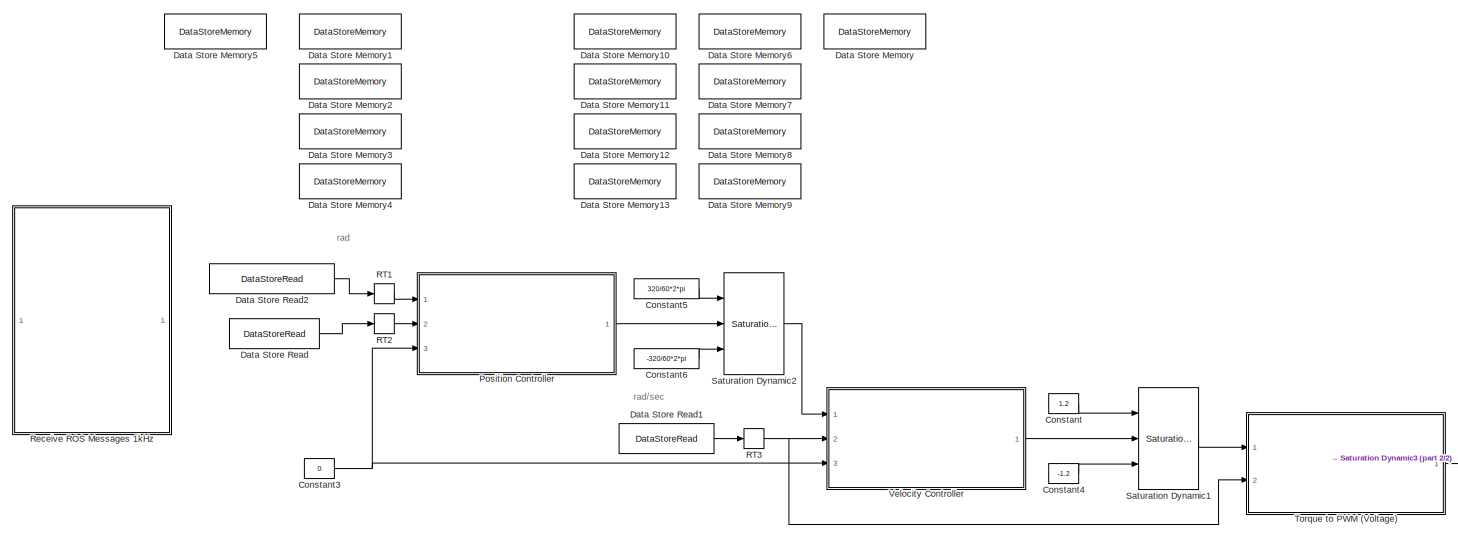
[diagram: root canvas - part 1/2, most of the canvas]
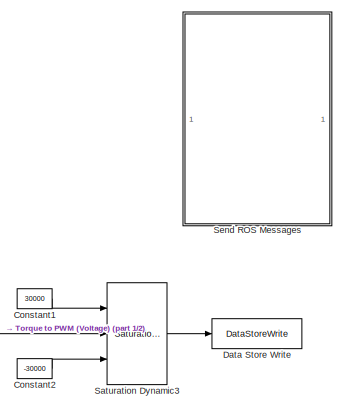
[diagram: root canvas - part 2/2, middle right region]
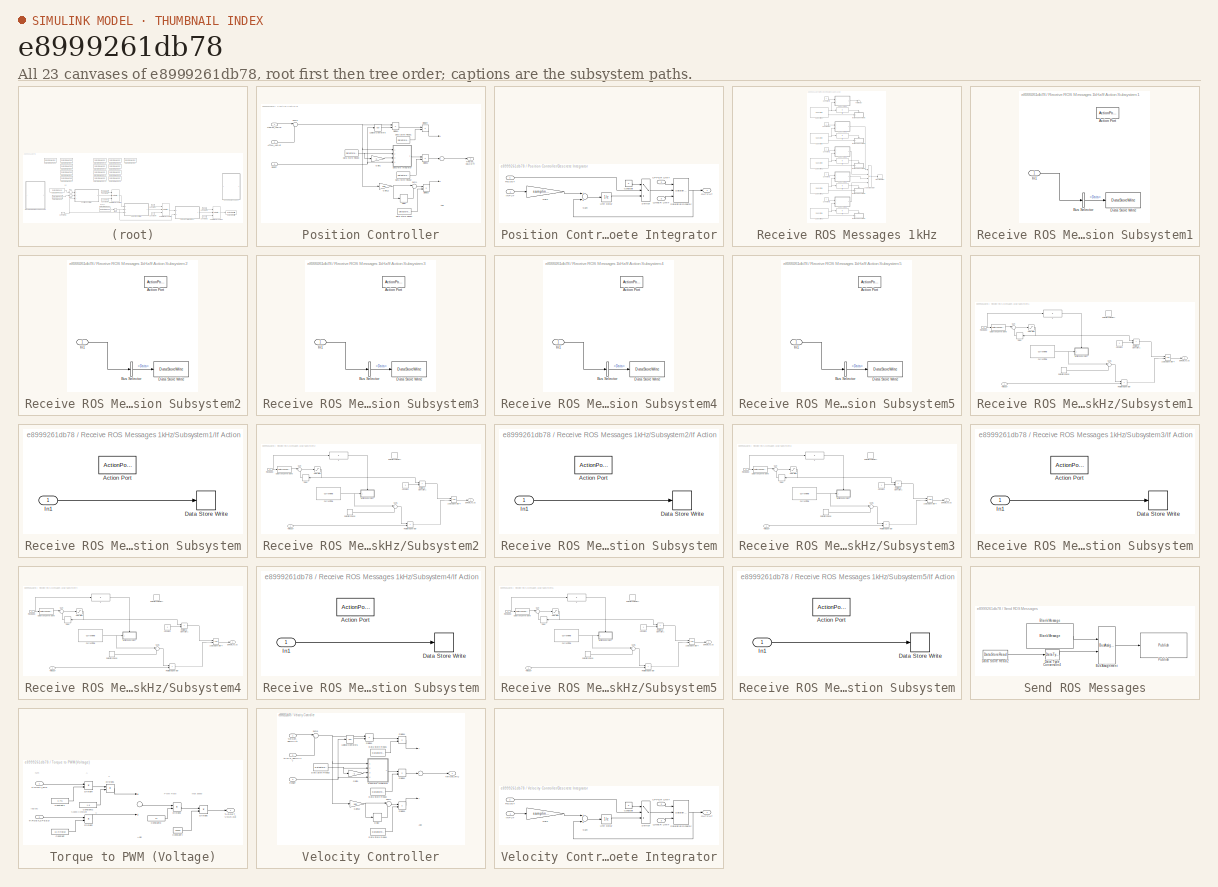
[diagram: thumbnail index - all 23 canvases of the model, root first then tree order]
MODEL slx_e8999261db78
KIND model
CONFIG AbsTol = auto
CONFIG EnableMultiTasking = on
CONFIG FixedStep = 0.001
CONFIG MaxStep = auto
CONFIG MinStep = auto
CONFIG RelTol = 1e-3
CONFIG SampleTimeConstraint = Unconstrained
CONFIG Solver = FixedStepDiscrete
CONFIG SolverName = FixedStepDiscrete
CONFIG StartTime = 0.0
CONFIG StopTime = Inf
BLOCK [Constant] Constant
  Value = 1.2
BLOCK [Constant] Constant1
  Value = 30000
BLOCK [Constant] Constant2
  Value = -30000
BLOCK [Constant] Constant3
  Value = 0
BLOCK [Constant] Constant4
  Value = -1.2
BLOCK [Constant] Constant5
  Value = 320/60*2*pi
BLOCK [Constant] Constant6
  Value = -320/60*2*pi
BLOCK [DataStoreMemory] Data Store Memory
  DataStoreName = COMMAND_VOLTAGE
  RTWStateStorageClass = ExportedGlobal
  ReadBeforeWriteMsg = warning
  ShowAdditionalParam = off
  WriteAfterReadMsg = warning
  WriteAfterWriteMsg = warning
BLOCK [DataStoreMemory] Data Store Memory1
  DataStoreName = ROTOR_ANGLE
  RTWStateStorageClass = ExportedGlobal
  ReadBeforeWriteMsg = warning
  ShowAdditionalParam = off
  WriteAfterReadMsg = warning
  WriteAfterWriteMsg = warning
BLOCK [DataStoreMemory] Data Store Memory10
  DataStoreName = ANGLE_P_GAIN
  RTWStateStorageClass = ExportedGlobal
  ReadBeforeWriteMsg = warning
  ShowAdditionalParam = off
  WriteAfterReadMsg = warning
  WriteAfterWriteMsg = warning
BLOCK [DataStoreMemory] Data Store Memory11
  DataStoreName = ANGLE_I_GAIN
  RTWStateStorageClass = ExportedGlobal
  ReadBeforeWriteMsg = warning
  ShowAdditionalParam = off
  WriteAfterReadMsg = warning
  WriteAfterWriteMsg = warning
BLOCK [DataStoreMemory] Data Store Memory12
  DataStoreName = ANGLE_D_GAIN
  RTWStateStorageClass = ExportedGlobal
  ReadBeforeWriteMsg = warning
  ShowAdditionalParam = off
  WriteAfterReadMsg = warning
  WriteAfterWriteMsg = warning
BLOCK [DataStoreMemory] Data Store Memory13
  DataStoreName = ANGLE_I_LIMIT
  RTWStateStorageClass = ExportedGlobal
  ReadBeforeWriteMsg = warning
  ShowAdditionalParam = off
  WriteAfterReadMsg = warning
  WriteAfterWriteMsg = warning
BLOCK [DataStoreMemory] Data Store Memory2
  DataStoreName = ROTATE_SPEED
  RTWStateStorageClass = ExportedGlobal
  ReadBeforeWriteMsg = warning
  ShowAdditionalParam = off
  WriteAfterReadMsg = warning
  WriteAfterWriteMsg = warning
BLOCK [DataStoreMemory] Data Store Memory3
  DataStoreName = ACTUAL_TORQUE
  RTWStateStorageClass = ExportedGlobal
  ReadBeforeWriteMsg = warning
  ShowAdditionalParam = off
  WriteAfterReadMsg = warning
  WriteAfterWriteMsg = warning
BLOCK [DataStoreMemory] Data Store Memory4
  DataStoreName = TEMPERATURE
  RTWStateStorageClass = ExportedGlobal
  ReadBeforeWriteMsg = warning
  ShowAdditionalParam = off
  WriteAfterReadMsg = warning
  WriteAfterWriteMsg = warning
BLOCK [DataStoreMemory] Data Store Memory5
  DataStoreName = COMMAND_ROTOR_ANGLE
  RTWStateStorageClass = ExportedGlobal
  ReadBeforeWriteMsg = warning
  ShowAdditionalParam = off
  WriteAfterReadMsg = warning
  WriteAfterWriteMsg = warning
BLOCK [DataStoreMemory] Data Store Memory6
  DataStoreName = VELOCITY_P_GAIN
  RTWStateStorageClass = ExportedGlobal
  ReadBeforeWriteMsg = warning
  ShowAdditionalParam = off
  WriteAfterReadMsg = warning
  WriteAfterWriteMsg = warning
BLOCK [DataStoreMemory] Data Store Memory7
  DataStoreName = VELOCITY_I_GAIN
  RTWStateStorageClass = ExportedGlobal
  ReadBeforeWriteMsg = warning
  ShowAdditionalParam = off
  WriteAfterReadMsg = warning
  WriteAfterWriteMsg = warning
BLOCK [DataStoreMemory] Data Store Memory8
  DataStoreName = VELOCITY_D_GAIN
  RTWStateStorageClass = ExportedGlobal
  ReadBeforeWriteMsg = warning
  ShowAdditionalParam = off
  WriteAfterReadMsg = warning
  WriteAfterWriteMsg = warning
BLOCK [DataStoreMemory] Data Store Memory9
  DataStoreName = VELOCITY_I_LIMIT
  RTWStateStorageClass = ExportedGlobal
  ReadBeforeWriteMsg = warning
  ShowAdditionalParam = off
  WriteAfterReadMsg = warning
  WriteAfterWriteMsg = warning
BLOCK [DataStoreRead] Data Store Read
  DataStoreName = ROTOR_ANGLE
  Ports = [0, 1]
BLOCK [DataStoreRead] Data Store Read1
  DataStoreName = ROTATE_SPEED
  Ports = [0, 1]
BLOCK [DataStoreRead] Data Store Read2
  DataStoreName = COMMAND_ROTOR_ANGLE
  Ports = [0, 1]
BLOCK [DataStoreWrite] Data Store Write
  DataStoreName = COMMAND_VOLTAGE
  Ports = [1]
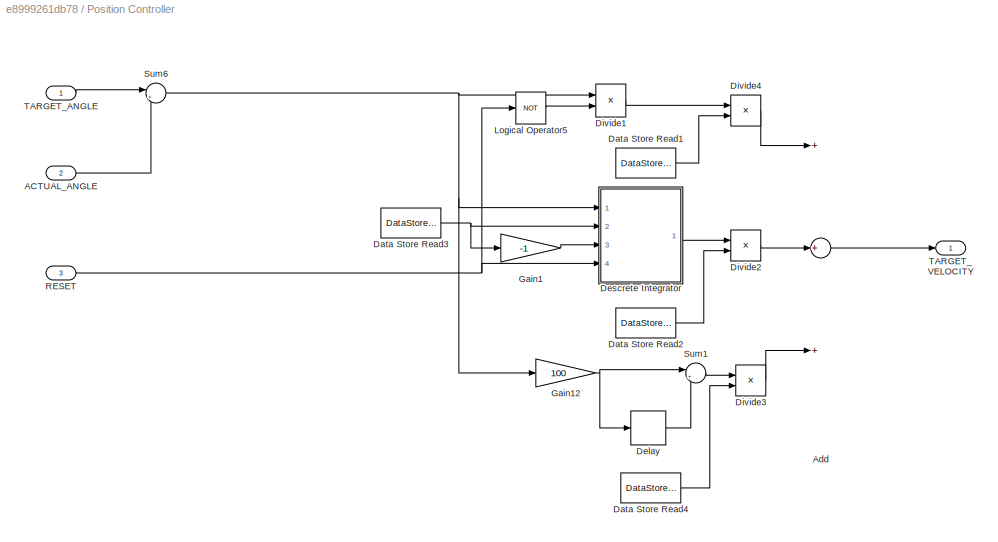
BLOCK [SubSystem] Position Controller
  Ports = [3, 1]
  RequestExecContextInheritance = off
  SystemSampleTime = 0.01
  TreatAsAtomicUnit = on
BLOCK [Inport] Position Controller/ACTUAL_ANGLE
  IconDisplay = Port number
  Port = 2
BLOCK [Sum] Position Controller/Add
  InputSameDT = off
  Inputs = +++
  OutDataTypeStr = Inherit: Inherit via internal rule
  Ports = [3, 1]
  SaturateOnIntegerOverflow = off
BLOCK [DataStoreRead] Position Controller/Data Store Read1
  DataStoreName = ANGLE_P_GAIN
  Ports = [0, 1]
BLOCK [DataStoreRead] Position Controller/Data Store Read2
  DataStoreName = ANGLE_I_GAIN
  Ports = [0, 1]
BLOCK [DataStoreRead] Position Controller/Data Store Read3
  DataStoreName = ANGLE_I_LIMIT
  Ports = [0, 1]
BLOCK [DataStoreRead] Position Controller/Data Store Read4
  DataStoreName = ANGLE_D_GAIN
  Ports = [0, 1]
BLOCK [Delay] Position Controller/Delay
  DelayLength = 1
  InputPortMap = u0
  Ports = [1, 1]
BLOCK [SubSystem] Position Controller/Descrete Integrator
  CopyFcn = set_param(gcbh,'LinkStatus','none')
  Ports = [4, 1]
  RequestExecContextInheritance = off
BLOCK [Constant] Position Controller/Descrete Integrator/Constant
  Value = 0
BLOCK [Gain] Position Controller/Descrete Integrator/Gain
  Gain = sampling_time
  OutDataTypeStr = Inherit: Inherit via internal rule
  ParamDataTypeStr = Inherit: Inherit via internal rule
  SaturateOnIntegerOverflow = off
BLOCK [Inport] Position Controller/Descrete Integrator/INPUT
  IconDisplay = Port number
BLOCK [Inport] Position Controller/Descrete Integrator/LOWER LIMIT
  IconDisplay = Port number
  Port = 3
BLOCK [Outport] Position Controller/Descrete Integrator/OUTPUT
  IconDisplay = Port number
BLOCK [Inport] Position Controller/Descrete Integrator/RESET
  IconDisplay = Port number
  Port = 4
BLOCK [Reference] Position Controller/Descrete Integrator/Saturation Dynamic  REF=simulink/Discontinuities/Saturation
Dynamic
  Ports = [3, 1]
  SourceBlock = simulink/Discontinuities/Saturation\nDynamic
  SourceProductBaseCode = SL
  SourceProductName = Simulink
  SourceType = Saturation Dynamic
BLOCK [Sum] Position Controller/Descrete Integrator/Sum
  InputSameDT = off
  OutDataTypeStr = Inherit: Inherit via internal rule
  Ports = [2, 1]
  SaturateOnIntegerOverflow = off
BLOCK [Switch] Position Controller/Descrete Integrator/Switch
  Criteria = u2 ~= 0
  InputSameDT = off
  SaturateOnIntegerOverflow = off
BLOCK [Inport] Position Controller/Descrete Integrator/UPPER LIMIT
  IconDisplay = Port number
  Port = 2
BLOCK [UnitDelay] Position Controller/Descrete Integrator/Unit Delay
  HasFrameUpgradeWarning = on
  SampleTime = -1
BLOCK [Product] Position Controller/Divide1
  InputSameDT = off
  Inputs = **
  OutDataTypeStr = Inherit: Inherit via internal rule
  Ports = [2, 1]
  RndMeth = Floor
  SaturateOnIntegerOverflow = off
BLOCK [Product] Position Controller/Divide2
  InputSameDT = off
  Inputs = **
  OutDataTypeStr = Inherit: Inherit via internal rule
  Ports = [2, 1]
  RndMeth = Floor
  SaturateOnIntegerOverflow = off
BLOCK [Product] Position Controller/Divide3
  InputSameDT = off
  Inputs = **
  OutDataTypeStr = Inherit: Inherit via internal rule
  Ports = [2, 1]
  RndMeth = Floor
  SaturateOnIntegerOverflow = off
BLOCK [Product] Position Controller/Divide4
  InputSameDT = off
  Inputs = **
  OutDataTypeStr = Inherit: Inherit via internal rule
  Ports = [2, 1]
  RndMeth = Floor
  SaturateOnIntegerOverflow = off
BLOCK [Gain] Position Controller/Gain1
  Gain = -1
  OutDataTypeStr = Inherit: Inherit via internal rule
  ParamDataTypeStr = Inherit: Inherit via internal rule
  SaturateOnIntegerOverflow = off
BLOCK [Gain] Position Controller/Gain12
  Gain = 100
  OutDataTypeStr = Inherit: Inherit via internal rule
  ParamDataTypeStr = Inherit: Inherit via internal rule
  SaturateOnIntegerOverflow = off
BLOCK [Logic] Position Controller/Logical Operator5
  AllPortsSameDT = off
  Operator = NOT
  OutDataTypeStr = boolean
  Ports = [1, 1]
BLOCK [Inport] Position Controller/RESET
  IconDisplay = Port number
  Port = 3
BLOCK [Sum] Position Controller/Sum1
  IconShape = round
  InputSameDT = off
  Inputs = |+-
  OutDataTypeStr = Inherit: Inherit via internal rule
  Ports = [2, 1]
  SaturateOnIntegerOverflow = off
BLOCK [Sum] Position Controller/Sum6
  IconShape = round
  InputSameDT = off
  Inputs = |+-
  OutDataTypeStr = Inherit: Inherit via internal rule
  Ports = [2, 1]
  SaturateOnIntegerOverflow = off
BLOCK [Inport] Position Controller/TARGET_ANGLE
  IconDisplay = Port number
BLOCK [Outport] Position Controller/TARGET_VELOCITY
  IconDisplay = Port number
BLOCK [RateTransition] RT1
  Deterministic = off
  OutPortSampleTime = 0.01
BLOCK [RateTransition] RT2
  Deterministic = off
  OutPortSampleTime = 0.01
BLOCK [RateTransition] RT3
  Deterministic = off
  OutPortSampleTime = 0.01
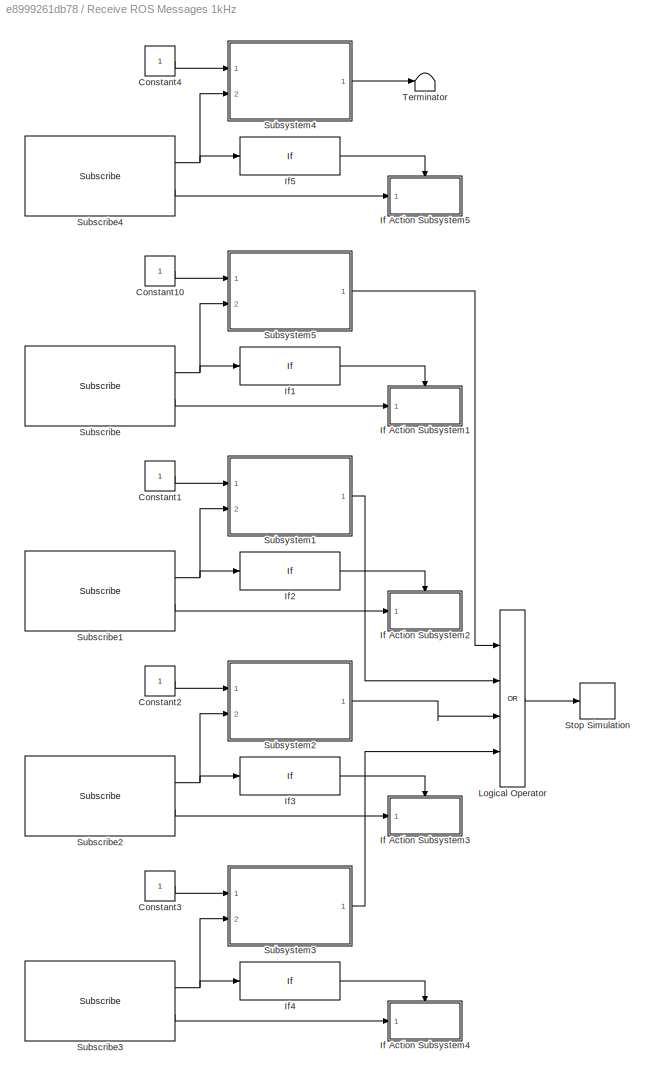
BLOCK [SubSystem] Receive ROS Messages 1kHz
  Ports = []
  RequestExecContextInheritance = off
  SystemSampleTime = 0.001
  TreatAsAtomicUnit = on
BLOCK [Constant] Receive ROS Messages 1kHz/Constant1
BLOCK [Constant] Receive ROS Messages 1kHz/Constant10
BLOCK [Constant] Receive ROS Messages 1kHz/Constant2
BLOCK [Constant] Receive ROS Messages 1kHz/Constant3
BLOCK [Constant] Receive ROS Messages 1kHz/Constant4
BLOCK [SubSystem] Receive ROS Messages 1kHz/If Action Subsystem1
  Ports = [1, 0, 0, 0, 0, 0, 0, 1]
  RequestExecContextInheritance = off
  TreatAsAtomicUnit = on
BLOCK [ActionPort] Receive ROS Messages 1kHz/If Action Subsystem1/Action Port
  ActionPortLabel = if(u1 == 1)
BLOCK [BusSelector] Receive ROS Messages 1kHz/If Action Subsystem1/Bus Selector
  OutputAsBus = off
  OutputSignals = Data
  Ports = [1, 1]
BLOCK [DataStoreWrite] Receive ROS Messages 1kHz/If Action Subsystem1/Data Store Write
  DataStoreName = ROTOR_ANGLE
  Ports = [1]
BLOCK [Inport] Receive ROS Messages 1kHz/If Action Subsystem1/In1
  IconDisplay = Port number
BLOCK [SubSystem] Receive ROS Messages 1kHz/If Action Subsystem2
  Ports = [1, 0, 0, 0, 0, 0, 0, 1]
  RequestExecContextInheritance = off
  TreatAsAtomicUnit = on
BLOCK [ActionPort] Receive ROS Messages 1kHz/If Action Subsystem2/Action Port
  ActionPortLabel = if(u1 == 1)
BLOCK [BusSelector] Receive ROS Messages 1kHz/If Action Subsystem2/Bus Selector
  OutputAsBus = off
  OutputSignals = Data
  Ports = [1, 1]
BLOCK [DataStoreWrite] Receive ROS Messages 1kHz/If Action Subsystem2/Data Store Write
  DataStoreName = ROTATE_SPEED
  Ports = [1]
BLOCK [Inport] Receive ROS Messages 1kHz/If Action Subsystem2/In1
  IconDisplay = Port number
BLOCK [SubSystem] Receive ROS Messages 1kHz/If Action Subsystem3
  Ports = [1, 0, 0, 0, 0, 0, 0, 1]
  RequestExecContextInheritance = off
  TreatAsAtomicUnit = on
BLOCK [ActionPort] Receive ROS Messages 1kHz/If Action Subsystem3/Action Port
  ActionPortLabel = if(u1 == 1)
BLOCK [BusSelector] Receive ROS Messages 1kHz/If Action Subsystem3/Bus Selector
  OutputAsBus = off
  OutputSignals = Data
  Ports = [1, 1]
BLOCK [DataStoreWrite] Receive ROS Messages 1kHz/If Action Subsystem3/Data Store Write
  DataStoreName = ACTUAL_TORQUE
  Ports = [1]
BLOCK [Inport] Receive ROS Messages 1kHz/If Action Subsystem3/In1
  IconDisplay = Port number
BLOCK [SubSystem] Receive ROS Messages 1kHz/If Action Subsystem4
  Ports = [1, 0, 0, 0, 0, 0, 0, 1]
  RequestExecContextInheritance = off
  TreatAsAtomicUnit = on
BLOCK [ActionPort] Receive ROS Messages 1kHz/If Action Subsystem4/Action Port
  ActionPortLabel = if(u1 == 1)
BLOCK [BusSelector] Receive ROS Messages 1kHz/If Action Subsystem4/Bus Selector
  OutputAsBus = off
  OutputSignals = Data
  Ports = [1, 1]
BLOCK [DataStoreWrite] Receive ROS Messages 1kHz/If Action Subsystem4/Data Store Write
  DataStoreName = TEMPERATURE
  Ports = [1]
BLOCK [Inport] Receive ROS Messages 1kHz/If Action Subsystem4/In1
  IconDisplay = Port number
BLOCK [SubSystem] Receive ROS Messages 1kHz/If Action Subsystem5
  Ports = [1, 0, 0, 0, 0, 0, 0, 1]
  RequestExecContextInheritance = off
  TreatAsAtomicUnit = on
BLOCK [ActionPort] Receive ROS Messages 1kHz/If Action Subsystem5/Action Port
  ActionPortLabel = if(u1 == 1)
BLOCK [BusSelector] Receive ROS Messages 1kHz/If Action Subsystem5/Bus Selector
  OutputAsBus = off
  OutputSignals = Data
  Ports = [1, 1]
BLOCK [DataStoreWrite] Receive ROS Messages 1kHz/If Action Subsystem5/Data Store Write
  DataStoreName = COMMAND_ROTOR_ANGLE
  Ports = [1]
BLOCK [Inport] Receive ROS Messages 1kHz/If Action Subsystem5/In1
  IconDisplay = Port number
BLOCK [If] Receive ROS Messages 1kHz/If1
  IfExpression = u1 == 1
  Ports = [1, 1]
  ShowElse = off
BLOCK [If] Receive ROS Messages 1kHz/If2
  IfExpression = u1 == 1
  Ports = [1, 1]
  ShowElse = off
BLOCK [If] Receive ROS Messages 1kHz/If3
  IfExpression = u1 == 1
  Ports = [1, 1]
  ShowElse = off
BLOCK [If] Receive ROS Messages 1kHz/If4
  IfExpression = u1 == 1
  Ports = [1, 1]
  ShowElse = off
BLOCK [If] Receive ROS Messages 1kHz/If5
  IfExpression = u1 == 1
  Ports = [1, 1]
  ShowElse = off
BLOCK [Logic] Receive ROS Messages 1kHz/Logical Operator
  AllPortsSameDT = off
  Inputs = 4
  Operator = OR
  OutDataTypeStr = boolean
  Ports = [4, 1]
BLOCK [Stop] Receive ROS Messages 1kHz/Stop Simulation
BLOCK [Reference] Receive ROS Messages 1kHz/Subscribe  REF=robotlib/Subscribe
  Ports = [0, 2]
  SourceBlock = robotlib/Subscribe
  SourceProductBaseCode = RR
  SourceProductName = ROS Toolbox
  SourceType = ROS Subscribe
BLOCK [Reference] Receive ROS Messages 1kHz/Subscribe1  REF=robotlib/Subscribe
  Ports = [0, 2]
  SourceBlock = robotlib/Subscribe
  SourceProductBaseCode = RR
  SourceProductName = ROS Toolbox
  SourceType = ROS Subscribe
BLOCK [Reference] Receive ROS Messages 1kHz/Subscribe2  REF=robotlib/Subscribe
  Ports = [0, 2]
  SourceBlock = robotlib/Subscribe
  SourceProductBaseCode = RR
  SourceProductName = ROS Toolbox
  SourceType = ROS Subscribe
BLOCK [Reference] Receive ROS Messages 1kHz/Subscribe3  REF=robotlib/Subscribe
  Ports = [0, 2]
  SourceBlock = robotlib/Subscribe
  SourceProductBaseCode = RR
  SourceProductName = ROS Toolbox
  SourceType = ROS Subscribe
BLOCK [Reference] Receive ROS Messages 1kHz/Subscribe4  REF=robotlib/Subscribe
  Ports = [0, 2]
  SourceBlock = robotlib/Subscribe
  SourceProductBaseCode = RR
  SourceProductName = ROS Toolbox
  SourceType = ROS Subscribe
BLOCK [SubSystem] Receive ROS Messages 1kHz/Subsystem1
  Ports = [2, 1]
  RequestExecContextInheritance = off
BLOCK [Constant] Receive ROS Messages 1kHz/Subsystem1/Constant
BLOCK [Reference] Receive ROS Messages 1kHz/Subsystem1/Current Time  REF=robotlib/Current Time
  Ports = [0, 1]
  SourceBlock = robotlib/Current Time
  SourceProductBaseCode = RO
  SourceProductName = Robotics System Toolbox
  SourceType = robotics.slros.internal.block.CurrentTime
BLOCK [DataStoreMemory] Receive ROS Messages 1kHz/Subsystem1/Data Store Memory
  DataStoreName = ROS_RECEIVED_TIME
  InitialValue = 10
  ReadBeforeWriteMsg = warning
  ShowAdditionalParam = off
  WriteAfterReadMsg = warning
  WriteAfterWriteMsg = warning
BLOCK [DataStoreRead] Receive ROS Messages 1kHz/Subsystem1/Data Store Read
  DataStoreName = ROS_RECEIVED_TIME
  Ports = [0, 1]
BLOCK [DataTypeConversion] Receive ROS Messages 1kHz/Subsystem1/Data Type Conversion6
  OutDataTypeStr = uint8
  RndMeth = Floor
  SaturateOnIntegerOverflow = off
BLOCK [Delay] Receive ROS Messages 1kHz/Subsystem1/Delay
  DelayLength = 1
  InputPortMap = u0
  Ports = [1, 1]
BLOCK [Outport] Receive ROS Messages 1kHz/Subsystem1/ERROR_FLAG
  IconDisplay = Port number
BLOCK [If] Receive ROS Messages 1kHz/Subsystem1/If
  IfExpression = u1 == 1
  Ports = [1, 1]
  ShowElse = off
BLOCK [SubSystem] Receive ROS Messages 1kHz/Subsystem1/If Action Subsystem
  Ports = [1, 0, 0, 0, 0, 0, 0, 1]
  RequestExecContextInheritance = off
  TreatAsAtomicUnit = on
BLOCK [ActionPort] Receive ROS Messages 1kHz/Subsystem1/If Action Subsystem/Action Port
  ActionPortLabel = if(u1 == 1)
BLOCK [DataStoreWrite] Receive ROS Messages 1kHz/Subsystem1/If Action Subsystem/Data Store Write
  DataStoreName = ROS_RECEIVED_TIME
  Ports = [1]
BLOCK [Inport] Receive ROS Messages 1kHz/Subsystem1/If Action Subsystem/In1
  IconDisplay = Port number
BLOCK [Logic] Receive ROS Messages 1kHz/Subsystem1/Logical Operator4
  AllPortsSameDT = off
  OutDataTypeStr = boolean
  Ports = [2, 1]
BLOCK [Inport] Receive ROS Messages 1kHz/Subsystem1/RECEIVED
  IconDisplay = Port number
  Port = 2
BLOCK [RelationalOperator] Receive ROS Messages 1kHz/Subsystem1/Relational Operator
  InputSameDT = off
  Operator = >
  OutDataTypeStr = boolean
  Ports = [2, 1]
  RndMeth = Simplest
BLOCK [RelationalOperator] Receive ROS Messages 1kHz/Subsystem1/Relational Operator1
  InputSameDT = off
  Operator = >
  OutDataTypeStr = boolean
  Ports = [2, 1]
  RndMeth = Simplest
BLOCK [Saturate] Receive ROS Messages 1kHz/Subsystem1/Saturation
  InputPortMap = u0
  LowerLimit = 0
  Ports = [1, 1]
  UpperLimit = 2
BLOCK [Sum] Receive ROS Messages 1kHz/Subsystem1/Sum
  IconShape = round
  InputSameDT = off
  Inputs = |++
  OutDataTypeStr = Inherit: Inherit via internal rule
  Ports = [2, 1]
  SaturateOnIntegerOverflow = off
BLOCK [Sum] Receive ROS Messages 1kHz/Subsystem1/Sum1
  IconShape = round
  InputSameDT = off
  Inputs = |+-
  OutDataTypeStr = Inherit: Inherit via internal rule
  Ports = [2, 1]
  SaturateOnIntegerOverflow = off
BLOCK [Inport] Receive ROS Messages 1kHz/Subsystem1/TIMEOUT
  IconDisplay = Port number
BLOCK [SubSystem] Receive ROS Messages 1kHz/Subsystem2
  Ports = [2, 1]
  RequestExecContextInheritance = off
BLOCK [Constant] Receive ROS Messages 1kHz/Subsystem2/Constant
BLOCK [Reference] Receive ROS Messages 1kHz/Subsystem2/Current Time  REF=robotlib/Current Time
  Ports = [0, 1]
  SourceBlock = robotlib/Current Time
  SourceProductBaseCode = RO
  SourceProductName = Robotics System Toolbox
  SourceType = robotics.slros.internal.block.CurrentTime
BLOCK [DataStoreMemory] Receive ROS Messages 1kHz/Subsystem2/Data Store Memory
  DataStoreName = ROS_RECEIVED_TIME
  InitialValue = 10
  ReadBeforeWriteMsg = warning
  ShowAdditionalParam = off
  WriteAfterReadMsg = warning
  WriteAfterWriteMsg = warning
BLOCK [DataStoreRead] Receive ROS Messages 1kHz/Subsystem2/Data Store Read
  DataStoreName = ROS_RECEIVED_TIME
  Ports = [0, 1]
BLOCK [DataTypeConversion] Receive ROS Messages 1kHz/Subsystem2/Data Type Conversion6
  OutDataTypeStr = uint8
  RndMeth = Floor
  SaturateOnIntegerOverflow = off
BLOCK [Delay] Receive ROS Messages 1kHz/Subsystem2/Delay
  DelayLength = 1
  InputPortMap = u0
  Ports = [1, 1]
BLOCK [Outport] Receive ROS Messages 1kHz/Subsystem2/ERROR_FLAG
  IconDisplay = Port number
BLOCK [If] Receive ROS Messages 1kHz/Subsystem2/If
  IfExpression = u1 == 1
  Ports = [1, 1]
  ShowElse = off
BLOCK [SubSystem] Receive ROS Messages 1kHz/Subsystem2/If Action Subsystem
  Ports = [1, 0, 0, 0, 0, 0, 0, 1]
  RequestExecContextInheritance = off
  TreatAsAtomicUnit = on
BLOCK [ActionPort] Receive ROS Messages 1kHz/Subsystem2/If Action Subsystem/Action Port
  ActionPortLabel = if(u1 == 1)
BLOCK [DataStoreWrite] Receive ROS Messages 1kHz/Subsystem2/If Action Subsystem/Data Store Write
  DataStoreName = ROS_RECEIVED_TIME
  Ports = [1]
BLOCK [Inport] Receive ROS Messages 1kHz/Subsystem2/If Action Subsystem/In1
  IconDisplay = Port number
BLOCK [Logic] Receive ROS Messages 1kHz/Subsystem2/Logical Operator4
  AllPortsSameDT = off
  OutDataTypeStr = boolean
  Ports = [2, 1]
BLOCK [Inport] Receive ROS Messages 1kHz/Subsystem2/RECEIVED
  IconDisplay = Port number
  Port = 2
BLOCK [RelationalOperator] Receive ROS Messages 1kHz/Subsystem2/Relational Operator
  InputSameDT = off
  Operator = >
  OutDataTypeStr = boolean
  Ports = [2, 1]
  RndMeth = Simplest
BLOCK [RelationalOperator] Receive ROS Messages 1kHz/Subsystem2/Relational Operator1
  InputSameDT = off
  Operator = >
  OutDataTypeStr = boolean
  Ports = [2, 1]
  RndMeth = Simplest
BLOCK [Saturate] Receive ROS Messages 1kHz/Subsystem2/Saturation
  InputPortMap = u0
  LowerLimit = 0
  Ports = [1, 1]
  UpperLimit = 2
BLOCK [Sum] Receive ROS Messages 1kHz/Subsystem2/Sum
  IconShape = round
  InputSameDT = off
  Inputs = |++
  OutDataTypeStr = Inherit: Inherit via internal rule
  Ports = [2, 1]
  SaturateOnIntegerOverflow = off
BLOCK [Sum] Receive ROS Messages 1kHz/Subsystem2/Sum1
  IconShape = round
  InputSameDT = off
  Inputs = |+-
  OutDataTypeStr = Inherit: Inherit via internal rule
  Ports = [2, 1]
  SaturateOnIntegerOverflow = off
BLOCK [Inport] Receive ROS Messages 1kHz/Subsystem2/TIMEOUT
  IconDisplay = Port number
BLOCK [SubSystem] Receive ROS Messages 1kHz/Subsystem3
  Ports = [2, 1]
  RequestExecContextInheritance = off
BLOCK [Constant] Receive ROS Messages 1kHz/Subsystem3/Constant
BLOCK [Reference] Receive ROS Messages 1kHz/Subsystem3/Current Time  REF=robotlib/Current Time
  Ports = [0, 1]
  SourceBlock = robotlib/Current Time
  SourceProductBaseCode = RO
  SourceProductName = Robotics System Toolbox
  SourceType = robotics.slros.internal.block.CurrentTime
BLOCK [DataStoreMemory] Receive ROS Messages 1kHz/Subsystem3/Data Store Memory
  DataStoreName = ROS_RECEIVED_TIME
  InitialValue = 10
  ReadBeforeWriteMsg = warning
  ShowAdditionalParam = off
  WriteAfterReadMsg = warning
  WriteAfterWriteMsg = warning
BLOCK [DataStoreRead] Receive ROS Messages 1kHz/Subsystem3/Data Store Read
  DataStoreName = ROS_RECEIVED_TIME
  Ports = [0, 1]
BLOCK [DataTypeConversion] Receive ROS Messages 1kHz/Subsystem3/Data Type Conversion6
  OutDataTypeStr = uint8
  RndMeth = Floor
  SaturateOnIntegerOverflow = off
BLOCK [Delay] Receive ROS Messages 1kHz/Subsystem3/Delay
  DelayLength = 1
  InputPortMap = u0
  Ports = [1, 1]
BLOCK [Outport] Receive ROS Messages 1kHz/Subsystem3/ERROR_FLAG
  IconDisplay = Port number
BLOCK [If] Receive ROS Messages 1kHz/Subsystem3/If
  IfExpression = u1 == 1
  Ports = [1, 1]
  ShowElse = off
BLOCK [SubSystem] Receive ROS Messages 1kHz/Subsystem3/If Action Subsystem
  Ports = [1, 0, 0, 0, 0, 0, 0, 1]
  RequestExecContextInheritance = off
  TreatAsAtomicUnit = on
BLOCK [ActionPort] Receive ROS Messages 1kHz/Subsystem3/If Action Subsystem/Action Port
  ActionPortLabel = if(u1 == 1)
BLOCK [DataStoreWrite] Receive ROS Messages 1kHz/Subsystem3/If Action Subsystem/Data Store Write
  DataStoreName = ROS_RECEIVED_TIME
  Ports = [1]
BLOCK [Inport] Receive ROS Messages 1kHz/Subsystem3/If Action Subsystem/In1
  IconDisplay = Port number
BLOCK [Logic] Receive ROS Messages 1kHz/Subsystem3/Logical Operator4
  AllPortsSameDT = off
  OutDataTypeStr = boolean
  Ports = [2, 1]
BLOCK [Inport] Receive ROS Messages 1kHz/Subsystem3/RECEIVED
  IconDisplay = Port number
  Port = 2
BLOCK [RelationalOperator] Receive ROS Messages 1kHz/Subsystem3/Relational Operator
  InputSameDT = off
  Operator = >
  OutDataTypeStr = boolean
  Ports = [2, 1]
  RndMeth = Simplest
BLOCK [RelationalOperator] Receive ROS Messages 1kHz/Subsystem3/Relational Operator1
  InputSameDT = off
  Operator = >
  OutDataTypeStr = boolean
  Ports = [2, 1]
  RndMeth = Simplest
BLOCK [Saturate] Receive ROS Messages 1kHz/Subsystem3/Saturation
  InputPortMap = u0
  LowerLimit = 0
  Ports = [1, 1]
  UpperLimit = 2
BLOCK [Sum] Receive ROS Messages 1kHz/Subsystem3/Sum
  IconShape = round
  InputSameDT = off
  Inputs = |++
  OutDataTypeStr = Inherit: Inherit via internal rule
  Ports = [2, 1]
  SaturateOnIntegerOverflow = off
BLOCK [Sum] Receive ROS Messages 1kHz/Subsystem3/Sum1
  IconShape = round
  InputSameDT = off
  Inputs = |+-
  OutDataTypeStr = Inherit: Inherit via internal rule
  Ports = [2, 1]
  SaturateOnIntegerOverflow = off
BLOCK [Inport] Receive ROS Messages 1kHz/Subsystem3/TIMEOUT
  IconDisplay = Port number
BLOCK [SubSystem] Receive ROS Messages 1kHz/Subsystem4
  Ports = [2, 1]
  RequestExecContextInheritance = off
BLOCK [Constant] Receive ROS Messages 1kHz/Subsystem4/Constant
BLOCK [Reference] Receive ROS Messages 1kHz/Subsystem4/Current Time  REF=robotlib/Current Time
  Ports = [0, 1]
  SourceBlock = robotlib/Current Time
  SourceProductBaseCode = RO
  SourceProductName = Robotics System Toolbox
  SourceType = robotics.slros.internal.block.CurrentTime
BLOCK [DataStoreMemory] Receive ROS Messages 1kHz/Subsystem4/Data Store Memory
  DataStoreName = ROS_RECEIVED_TIME
  InitialValue = 10
  ReadBeforeWriteMsg = warning
  ShowAdditionalParam = off
  WriteAfterReadMsg = warning
  WriteAfterWriteMsg = warning
BLOCK [DataStoreRead] Receive ROS Messages 1kHz/Subsystem4/Data Store Read
  DataStoreName = ROS_RECEIVED_TIME
  Ports = [0, 1]
BLOCK [DataTypeConversion] Receive ROS Messages 1kHz/Subsystem4/Data Type Conversion6
  OutDataTypeStr = uint8
  RndMeth = Floor
  SaturateOnIntegerOverflow = off
BLOCK [Delay] Receive ROS Messages 1kHz/Subsystem4/Delay
  DelayLength = 1
  InputPortMap = u0
  Ports = [1, 1]
BLOCK [Outport] Receive ROS Messages 1kHz/Subsystem4/ERROR_FLAG
  IconDisplay = Port number
BLOCK [If] Receive ROS Messages 1kHz/Subsystem4/If
  IfExpression = u1 == 1
  Ports = [1, 1]
  ShowElse = off
BLOCK [SubSystem] Receive ROS Messages 1kHz/Subsystem4/If Action Subsystem
  Ports = [1, 0, 0, 0, 0, 0, 0, 1]
  RequestExecContextInheritance = off
  TreatAsAtomicUnit = on
BLOCK [ActionPort] Receive ROS Messages 1kHz/Subsystem4/If Action Subsystem/Action Port
  ActionPortLabel = if(u1 == 1)
BLOCK [DataStoreWrite] Receive ROS Messages 1kHz/Subsystem4/If Action Subsystem/Data Store Write
  DataStoreName = ROS_RECEIVED_TIME
  Ports = [1]
BLOCK [Inport] Receive ROS Messages 1kHz/Subsystem4/If Action Subsystem/In1
  IconDisplay = Port number
BLOCK [Logic] Receive ROS Messages 1kHz/Subsystem4/Logical Operator4
  AllPortsSameDT = off
  OutDataTypeStr = boolean
  Ports = [2, 1]
BLOCK [Inport] Receive ROS Messages 1kHz/Subsystem4/RECEIVED
  IconDisplay = Port number
  Port = 2
BLOCK [RelationalOperator] Receive ROS Messages 1kHz/Subsystem4/Relational Operator
  InputSameDT = off
  Operator = >
  OutDataTypeStr = boolean
  Ports = [2, 1]
  RndMeth = Simplest
BLOCK [RelationalOperator] Receive ROS Messages 1kHz/Subsystem4/Relational Operator1
  InputSameDT = off
  Operator = >
  OutDataTypeStr = boolean
  Ports = [2, 1]
  RndMeth = Simplest
BLOCK [Saturate] Receive ROS Messages 1kHz/Subsystem4/Saturation
  InputPortMap = u0
  LowerLimit = 0
  Ports = [1, 1]
  UpperLimit = 2
BLOCK [Sum] Receive ROS Messages 1kHz/Subsystem4/Sum
  IconShape = round
  InputSameDT = off
  Inputs = |++
  OutDataTypeStr = Inherit: Inherit via internal rule
  Ports = [2, 1]
  SaturateOnIntegerOverflow = off
BLOCK [Sum] Receive ROS Messages 1kHz/Subsystem4/Sum1
  IconShape = round
  InputSameDT = off
  Inputs = |+-
  OutDataTypeStr = Inherit: Inherit via internal rule
  Ports = [2, 1]
  SaturateOnIntegerOverflow = off
BLOCK [Inport] Receive ROS Messages 1kHz/Subsystem4/TIMEOUT
  IconDisplay = Port number
BLOCK [SubSystem] Receive ROS Messages 1kHz/Subsystem5
  Ports = [2, 1]
  RequestExecContextInheritance = off
BLOCK [Constant] Receive ROS Messages 1kHz/Subsystem5/Constant
BLOCK [Reference] Receive ROS Messages 1kHz/Subsystem5/Current Time  REF=robotlib/Current Time
  Ports = [0, 1]
  SourceBlock = robotlib/Current Time
  SourceProductBaseCode = RO
  SourceProductName = Robotics System Toolbox
  SourceType = robotics.slros.internal.block.CurrentTime
BLOCK [DataStoreMemory] Receive ROS Messages 1kHz/Subsystem5/Data Store Memory
  DataStoreName = ROS_RECEIVED_TIME
  InitialValue = 10
  ReadBeforeWriteMsg = warning
  ShowAdditionalParam = off
  WriteAfterReadMsg = warning
  WriteAfterWriteMsg = warning
BLOCK [DataStoreRead] Receive ROS Messages 1kHz/Subsystem5/Data Store Read
  DataStoreName = ROS_RECEIVED_TIME
  Ports = [0, 1]
BLOCK [DataTypeConversion] Receive ROS Messages 1kHz/Subsystem5/Data Type Conversion6
  OutDataTypeStr = uint8
  RndMeth = Floor
  SaturateOnIntegerOverflow = off
BLOCK [Delay] Receive ROS Messages 1kHz/Subsystem5/Delay
  DelayLength = 1
  InputPortMap = u0
  Ports = [1, 1]
BLOCK [Outport] Receive ROS Messages 1kHz/Subsystem5/ERROR_FLAG
  IconDisplay = Port number
BLOCK [If] Receive ROS Messages 1kHz/Subsystem5/If
  IfExpression = u1 == 1
  Ports = [1, 1]
  ShowElse = off
BLOCK [SubSystem] Receive ROS Messages 1kHz/Subsystem5/If Action Subsystem
  Ports = [1, 0, 0, 0, 0, 0, 0, 1]
  RequestExecContextInheritance = off
  TreatAsAtomicUnit = on
BLOCK [ActionPort] Receive ROS Messages 1kHz/Subsystem5/If Action Subsystem/Action Port
  ActionPortLabel = if(u1 == 1)
BLOCK [DataStoreWrite] Receive ROS Messages 1kHz/Subsystem5/If Action Subsystem/Data Store Write
  DataStoreName = ROS_RECEIVED_TIME
  Ports = [1]
BLOCK [Inport] Receive ROS Messages 1kHz/Subsystem5/If Action Subsystem/In1
  IconDisplay = Port number
BLOCK [Logic] Receive ROS Messages 1kHz/Subsystem5/Logical Operator4
  AllPortsSameDT = off
  OutDataTypeStr = boolean
  Ports = [2, 1]
BLOCK [Inport] Receive ROS Messages 1kHz/Subsystem5/RECEIVED
  IconDisplay = Port number
  Port = 2
BLOCK [RelationalOperator] Receive ROS Messages 1kHz/Subsystem5/Relational Operator
  InputSameDT = off
  Operator = >
  OutDataTypeStr = boolean
  Ports = [2, 1]
  RndMeth = Simplest
BLOCK [RelationalOperator] Receive ROS Messages 1kHz/Subsystem5/Relational Operator1
  InputSameDT = off
  Operator = >
  OutDataTypeStr = boolean
  Ports = [2, 1]
  RndMeth = Simplest
BLOCK [Saturate] Receive ROS Messages 1kHz/Subsystem5/Saturation
  InputPortMap = u0
  LowerLimit = 0
  Ports = [1, 1]
  UpperLimit = 2
BLOCK [Sum] Receive ROS Messages 1kHz/Subsystem5/Sum
  IconShape = round
  InputSameDT = off
  Inputs = |++
  OutDataTypeStr = Inherit: Inherit via internal rule
  Ports = [2, 1]
  SaturateOnIntegerOverflow = off
BLOCK [Sum] Receive ROS Messages 1kHz/Subsystem5/Sum1
  IconShape = round
  InputSameDT = off
  Inputs = |+-
  OutDataTypeStr = Inherit: Inherit via internal rule
  Ports = [2, 1]
  SaturateOnIntegerOverflow = off
BLOCK [Inport] Receive ROS Messages 1kHz/Subsystem5/TIMEOUT
  IconDisplay = Port number
BLOCK [Terminator] Receive ROS Messages 1kHz/Terminator
BLOCK [Reference] Saturation Dynamic1  REF=simulink/Discontinuities/Saturation
Dynamic
  Ports = [3, 1]
  SourceBlock = simulink/Discontinuities/Saturation\nDynamic
  SourceProductBaseCode = SL
  SourceProductName = Simulink
  SourceType = Saturation Dynamic
BLOCK [Reference] Saturation Dynamic2  REF=simulink/Discontinuities/Saturation
Dynamic
  Ports = [3, 1]
  SourceBlock = simulink/Discontinuities/Saturation\nDynamic
  SourceProductBaseCode = SL
  SourceProductName = Simulink
  SourceType = Saturation Dynamic
BLOCK [Reference] Saturation Dynamic3  REF=simulink/Discontinuities/Saturation
Dynamic
  Ports = [3, 1]
  SourceBlock = simulink/Discontinuities/Saturation\nDynamic
  SourceProductBaseCode = SL
  SourceProductName = Simulink
  SourceType = Saturation Dynamic
BLOCK [SubSystem] Send ROS Messages
  Ports = []
  RequestExecContextInheritance = off
  SystemSampleTime = 0.01
  TreatAsAtomicUnit = on
BLOCK [Reference] Send ROS Messages/Blank Message  REF=robotlib/Blank Message
  Ports = [0, 1]
  SourceBlock = robotlib/Blank Message
  SourceProductBaseCode = RR
  SourceProductName = ROS Toolbox
  SourceType = ROS Blank Message
BLOCK [BusAssignment] Send ROS Messages/Bus Assignment
  AssignedSignals = Data
  Ports = [2, 1]
BLOCK [DataStoreRead] Send ROS Messages/Data Store Read2
  DataStoreName = COMMAND_VOLTAGE
  Ports = [0, 1]
BLOCK [DataTypeConversion] Send ROS Messages/Data Type Conversion4
  OutDataTypeStr = int16
  RndMeth = Floor
  SaturateOnIntegerOverflow = off
BLOCK [Reference] Send ROS Messages/Publish  REF=robotlib/Publish
  Ports = [1]
  SourceBlock = robotlib/Publish
  SourceProductBaseCode = RR
  SourceProductName = ROS Toolbox
  SourceType = ROS Publish
BLOCK [SubSystem] Torque to PWM (Voltage)
  Ports = [2, 1]
  RequestExecContextInheritance = off
  SystemSampleTime = 0.01
  TreatAsAtomicUnit = on
BLOCK [Sum] Torque to PWM (Voltage)/Add
  InputSameDT = off
  OutDataTypeStr = Inherit: Inherit via internal rule
  Ports = [2, 1]
  SaturateOnIntegerOverflow = off
BLOCK [Constant] Torque to PWM (Voltage)/Constant
  Value = 13.3*2*pi/60
BLOCK [Constant] Torque to PWM (Voltage)/Constant1
  Value = 0.741
BLOCK [Constant] Torque to PWM (Voltage)/Constant2
  Value = 1.8
BLOCK [Constant] Torque to PWM (Voltage)/Constant3
  Value = 24
BLOCK [Constant] Torque to PWM (Voltage)/Constant4
  Value = 30000
BLOCK [Product] Torque to PWM (Voltage)/Divide1
  InputSameDT = off
  Inputs = **
  OutDataTypeStr = Inherit: Inherit via internal rule
  Ports = [2, 1]
  RndMeth = Floor
  SaturateOnIntegerOverflow = off
BLOCK [Product] Torque to PWM (Voltage)/Divide2
  InputSameDT = off
  Inputs = */
  OutDataTypeStr = Inherit: Inherit via internal rule
  Ports = [2, 1]
  RndMeth = Floor
  SaturateOnIntegerOverflow = off
BLOCK [Product] Torque to PWM (Voltage)/Divide3
  InputSameDT = off
  Inputs = */
  OutDataTypeStr = Inherit: Inherit via internal rule
  Ports = [2, 1]
  RndMeth = Floor
  SaturateOnIntegerOverflow = off
BLOCK [Product] Torque to PWM (Voltage)/Divide4
  InputSameDT = off
  Inputs = */
  OutDataTypeStr = Inherit: Inherit via internal rule
  Ports = [2, 1]
  RndMeth = Floor
  SaturateOnIntegerOverflow = off
BLOCK [Product] Torque to PWM (Voltage)/Divide5
  InputSameDT = off
  Inputs = **
  OutDataTypeStr = Inherit: Inherit via internal rule
  Ports = [2, 1]
  RndMeth = Floor
  SaturateOnIntegerOverflow = off
BLOCK [Inport] Torque to PWM (Voltage)/TARGET_SPEED
  IconDisplay = Port number
  Port = 2
BLOCK [Inport] Torque to PWM (Voltage)/TARGET_TRQ
  IconDisplay = Port number
BLOCK [Outport] Torque to PWM (Voltage)/TARGET_VOLTAGE
  IconDisplay = Port number
BLOCK [SubSystem] Velocity Controller
  Ports = [3, 1]
  RequestExecContextInheritance = off
  SystemSampleTime = 0.01
  TreatAsAtomicUnit = on
BLOCK [Inport] Velocity Controller/ACTUAL_VELOCITY
  IconDisplay = Port number
  Port = 2
BLOCK [Sum] Velocity Controller/Add
  InputSameDT = off
  Inputs = +++
  OutDataTypeStr = Inherit: Inherit via internal rule
  Ports = [3, 1]
  SaturateOnIntegerOverflow = off
BLOCK [DataStoreRead] Velocity Controller/Data Store Read1
  DataStoreName = VELOCITY_P_GAIN
  Ports = [0, 1]
BLOCK [DataStoreRead] Velocity Controller/Data Store Read2
  DataStoreName = VELOCITY_I_GAIN
  Ports = [0, 1]
BLOCK [DataStoreRead] Velocity Controller/Data Store Read3
  DataStoreName = VELOCITY_I_LIMIT
  Ports = [0, 1]
BLOCK [DataStoreRead] Velocity Controller/Data Store Read4
  DataStoreName = VELOCITY_D_GAIN
  Ports = [0, 1]
BLOCK [Delay] Velocity Controller/Delay
  DelayLength = 1
  InputPortMap = u0
  Ports = [1, 1]
BLOCK [SubSystem] Velocity Controller/Descrete Integrator
  CopyFcn = set_param(gcbh,'LinkStatus','none')
  Ports = [4, 1]
  RequestExecContextInheritance = off
BLOCK [Constant] Velocity Controller/Descrete Integrator/Constant
  Value = 0
BLOCK [Gain] Velocity Controller/Descrete Integrator/Gain
  Gain = sampling_time
  OutDataTypeStr = Inherit: Inherit via internal rule
  ParamDataTypeStr = Inherit: Inherit via internal rule
  SaturateOnIntegerOverflow = off
BLOCK [Inport] Velocity Controller/Descrete Integrator/INPUT
  IconDisplay = Port number
BLOCK [Inport] Velocity Controller/Descrete Integrator/LOWER LIMIT
  IconDisplay = Port number
  Port = 3
BLOCK [Outport] Velocity Controller/Descrete Integrator/OUTPUT
  IconDisplay = Port number
BLOCK [Inport] Velocity Controller/Descrete Integrator/RESET
  IconDisplay = Port number
  Port = 4
BLOCK [Reference] Velocity Controller/Descrete Integrator/Saturation Dynamic  REF=simulink/Discontinuities/Saturation
Dynamic
  Ports = [3, 1]
  SourceBlock = simulink/Discontinuities/Saturation\nDynamic
  SourceProductBaseCode = SL
  SourceProductName = Simulink
  SourceType = Saturation Dynamic
BLOCK [Sum] Velocity Controller/Descrete Integrator/Sum
  InputSameDT = off
  OutDataTypeStr = Inherit: Inherit via internal rule
  Ports = [2, 1]
  SaturateOnIntegerOverflow = off
BLOCK [Switch] Velocity Controller/Descrete Integrator/Switch
  Criteria = u2 ~= 0
  InputSameDT = off
  SaturateOnIntegerOverflow = off
BLOCK [Inport] Velocity Controller/Descrete Integrator/UPPER LIMIT
  IconDisplay = Port number
  Port = 2
BLOCK [UnitDelay] Velocity Controller/Descrete Integrator/Unit Delay
  HasFrameUpgradeWarning = on
  SampleTime = -1
BLOCK [Product] Velocity Controller/Divide1
  InputSameDT = off
  Inputs = **
  OutDataTypeStr = Inherit: Inherit via internal rule
  Ports = [2, 1]
  RndMeth = Floor
  SaturateOnIntegerOverflow = off
BLOCK [Product] Velocity Controller/Divide2
  InputSameDT = off
  Inputs = **
  OutDataTypeStr = Inherit: Inherit via internal rule
  Ports = [2, 1]
  RndMeth = Floor
  SaturateOnIntegerOverflow = off
BLOCK [Product] Velocity Controller/Divide3
  InputSameDT = off
  Inputs = **
  OutDataTypeStr = Inherit: Inherit via internal rule
  Ports = [2, 1]
  RndMeth = Floor
  SaturateOnIntegerOverflow = off
BLOCK [Product] Velocity Controller/Divide4
  InputSameDT = off
  Inputs = **
  OutDataTypeStr = Inherit: Inherit via internal rule
  Ports = [2, 1]
  RndMeth = Floor
  SaturateOnIntegerOverflow = off
BLOCK [Gain] Velocity Controller/Gain1
  Gain = -1
  OutDataTypeStr = Inherit: Inherit via internal rule
  ParamDataTypeStr = Inherit: Inherit via internal rule
  SaturateOnIntegerOverflow = off
BLOCK [Gain] Velocity Controller/Gain12
  Gain = 100
  OutDataTypeStr = Inherit: Inherit via internal rule
  ParamDataTypeStr = Inherit: Inherit via internal rule
  SaturateOnIntegerOverflow = off
BLOCK [Logic] Velocity Controller/Logical Operator5
  AllPortsSameDT = off
  Operator = NOT
  OutDataTypeStr = boolean
  Ports = [1, 1]
BLOCK [Inport] Velocity Controller/RESET
  IconDisplay = Port number
  Port = 3
BLOCK [Sum] Velocity Controller/Sum1
  IconShape = round
  InputSameDT = off
  Inputs = |+-
  OutDataTypeStr = Inherit: Inherit via internal rule
  Ports = [2, 1]
  SaturateOnIntegerOverflow = off
BLOCK [Sum] Velocity Controller/Sum6
  IconShape = round
  InputSameDT = off
  Inputs = |+-
  OutDataTypeStr = Inherit: Inherit via internal rule
  Ports = [2, 1]
  SaturateOnIntegerOverflow = off
BLOCK [Outport] Velocity Controller/TARGET_TRQ
  IconDisplay = Port number
BLOCK [Inport] Velocity Controller/TARGET_VELOCITY
  IconDisplay = Port number
ANNOTATION (root): rad
ANNOTATION (root): rad/sec
ANNOTATION Torque to PWM (Voltage): A
ANNOTATION Torque to PWM (Voltage): Max 30000
ANNOTATION Torque to PWM (Voltage): Nm
ANNOTATION Torque to PWM (Voltage): PWM Rate
ANNOTATION Torque to PWM (Voltage): Speed Constant
ANNOTATION Torque to PWM (Voltage): V
ANNOTATION Torque to PWM (Voltage): rad/sec
LINE Constant1:1 -> Saturation Dynamic3:1
LINE Constant2:1 -> Saturation Dynamic3:3
NET Constant3:1 -> Position Controller:3, Velocity Controller:3
LINE Constant4:1 -> Saturation Dynamic1:3
LINE Constant5:1 -> Saturation Dynamic2:1
LINE Constant6:1 -> Saturation Dynamic2:3
LINE Constant:1 -> Saturation Dynamic1:1
LINE Data Store Read1:1 -> RT3:1
LINE Data Store Read2:1 -> RT1:1
LINE Data Store Read:1 -> RT2:1
LINE Position Controller/ACTUAL_ANGLE:1 -> Position Controller/Sum6:2
LINE Position Controller/Add:1 -> Position Controller/TARGET_VELOCITY:1
LINE Position Controller/Data Store Read1:1 -> Position Controller/Divide4:2
LINE Position Controller/Data Store Read2:1 -> Position Controller/Divide2:2
NET Position Controller/Data Store Read3:1 -> Position Controller/Descrete Integrator:2, Position Controller/Gain1:1
LINE Position Controller/Data Store Read4:1 -> Position Controller/Divide3:2
LINE Position Controller/Delay:1 -> Position Controller/Sum1:2
LINE Position Controller/Descrete Integrator/Constant:1 -> Position Controller/Descrete Integrator/Switch:1
LINE Position Controller/Descrete Integrator/Gain:1 -> Position Controller/Descrete Integrator/Sum:1
LINE Position Controller/Descrete Integrator/INPUT:1 -> Position Controller/Descrete Integrator/Gain:1
LINE Position Controller/Descrete Integrator/LOWER LIMIT:1 -> Position Controller/Descrete Integrator/Saturation Dynamic:3
LINE Position Controller/Descrete Integrator/RESET:1 -> Position Controller/Descrete Integrator/Switch:2
NET Position Controller/Descrete Integrator/Saturation Dynamic:1 -> Position Controller/Descrete Integrator/OUTPUT:1, Position Controller/Descrete Integrator/Sum:2
LINE Position Controller/Descrete Integrator/Sum:1 -> Position Controller/Descrete Integrator/Unit Delay:1
LINE Position Controller/Descrete Integrator/Switch:1 -> Position Controller/Descrete Integrator/Saturation Dynamic:2
LINE Position Controller/Descrete Integrator/UPPER LIMIT:1 -> Position Controller/Descrete Integrator/Saturation Dynamic:1
LINE Position Controller/Descrete Integrator/Unit Delay:1 -> Position Controller/Descrete Integrator/Switch:3
LINE Position Controller/Descrete Integrator:1 -> Position Controller/Divide2:1
LINE Position Controller/Divide1:1 -> Position Controller/Divide4:1
LINE Position Controller/Divide2:1 -> Position Controller/Add:2
LINE Position Controller/Divide3:1 -> Position Controller/Add:3
LINE Position Controller/Divide4:1 -> Position Controller/Add:1
NET Position Controller/Gain12:1 -> Position Controller/Delay:1, Position Controller/Sum1:1
LINE Position Controller/Gain1:1 -> Position Controller/Descrete Integrator:3
LINE Position Controller/Logical Operator5:1 -> Position Controller/Divide1:2
NET Position Controller/RESET:1 -> Position Controller/Descrete Integrator:4, Position Controller/Logical Operator5:1
LINE Position Controller/Sum1:1 -> Position Controller/Divide3:1
NET Position Controller/Sum6:1 -> Position Controller/Descrete Integrator:1, Position Controller/Divide1:1, Position Controller/Gain12:1
LINE Position Controller/TARGET_ANGLE:1 -> Position Controller/Sum6:1
LINE Position Controller:1 -> Saturation Dynamic2:2
LINE RT1:1 -> Position Controller:1
LINE RT2:1 -> Position Controller:2
NET RT3:1 -> Torque to PWM (Voltage):2, Velocity Controller:2
LINE Receive ROS Messages 1kHz/Constant10:1 -> Receive ROS Messages 1kHz/Subsystem5:1
LINE Receive ROS Messages 1kHz/Constant1:1 -> Receive ROS Messages 1kHz/Subsystem1:1
LINE Receive ROS Messages 1kHz/Constant2:1 -> Receive ROS Messages 1kHz/Subsystem2:1
LINE Receive ROS Messages 1kHz/Constant3:1 -> Receive ROS Messages 1kHz/Subsystem3:1
LINE Receive ROS Messages 1kHz/Constant4:1 -> Receive ROS Messages 1kHz/Subsystem4:1
LINE Receive ROS Messages 1kHz/If Action Subsystem1/Bus Selector:1 -> Receive ROS Messages 1kHz/If Action Subsystem1/Data Store Write:1
LINE Receive ROS Messages 1kHz/If Action Subsystem1/In1:1 -> Receive ROS Messages 1kHz/If Action Subsystem1/Bus Selector:1
LINE Receive ROS Messages 1kHz/If Action Subsystem2/Bus Selector:1 -> Receive ROS Messages 1kHz/If Action Subsystem2/Data Store Write:1
LINE Receive ROS Messages 1kHz/If Action Subsystem2/In1:1 -> Receive ROS Messages 1kHz/If Action Subsystem2/Bus Selector:1
LINE Receive ROS Messages 1kHz/If Action Subsystem3/Bus Selector:1 -> Receive ROS Messages 1kHz/If Action Subsystem3/Data Store Write:1
LINE Receive ROS Messages 1kHz/If Action Subsystem3/In1:1 -> Receive ROS Messages 1kHz/If Action Subsystem3/Bus Selector:1
LINE Receive ROS Messages 1kHz/If Action Subsystem4/Bus Selector:1 -> Receive ROS Messages 1kHz/If Action Subsystem4/Data Store Write:1
LINE Receive ROS Messages 1kHz/If Action Subsystem4/In1:1 -> Receive ROS Messages 1kHz/If Action Subsystem4/Bus Selector:1
LINE Receive ROS Messages 1kHz/If Action Subsystem5/Bus Selector:1 -> Receive ROS Messages 1kHz/If Action Subsystem5/Data Store Write:1
LINE Receive ROS Messages 1kHz/If Action Subsystem5/In1:1 -> Receive ROS Messages 1kHz/If Action Subsystem5/Bus Selector:1
LINE Receive ROS Messages 1kHz/If1:1 -> Receive ROS Messages 1kHz/If Action Subsystem1:ifaction
LINE Receive ROS Messages 1kHz/If2:1 -> Receive ROS Messages 1kHz/If Action Subsystem2:ifaction
LINE Receive ROS Messages 1kHz/If3:1 -> Receive ROS Messages 1kHz/If Action Subsystem3:ifaction
LINE Receive ROS Messages 1kHz/If4:1 -> Receive ROS Messages 1kHz/If Action Subsystem4:ifaction
LINE Receive ROS Messages 1kHz/If5:1 -> Receive ROS Messages 1kHz/If Action Subsystem5:ifaction
LINE Receive ROS Messages 1kHz/Logical Operator:1 -> Receive ROS Messages 1kHz/Stop Simulation:1
NET Receive ROS Messages 1kHz/Subscribe1:1 -> Receive ROS Messages 1kHz/If2:1, Receive ROS Messages 1kHz/Subsystem1:2
LINE Receive ROS Messages 1kHz/Subscribe1:2 -> Receive ROS Messages 1kHz/If Action Subsystem2:1
NET Receive ROS Messages 1kHz/Subscribe2:1 -> Receive ROS Messages 1kHz/If3:1, Receive ROS Messages 1kHz/Subsystem2:2
LINE Receive ROS Messages 1kHz/Subscribe2:2 -> Receive ROS Messages 1kHz/If Action Subsystem3:1
NET Receive ROS Messages 1kHz/Subscribe3:1 -> Receive ROS Messages 1kHz/If4:1, Receive ROS Messages 1kHz/Subsystem3:2
LINE Receive ROS Messages 1kHz/Subscribe3:2 -> Receive ROS Messages 1kHz/If Action Subsystem4:1
NET Receive ROS Messages 1kHz/Subscribe4:1 -> Receive ROS Messages 1kHz/If5:1, Receive ROS Messages 1kHz/Subsystem4:2
LINE Receive ROS Messages 1kHz/Subscribe4:2 -> Receive ROS Messages 1kHz/If Action Subsystem5:1
NET Receive ROS Messages 1kHz/Subscribe:1 -> Receive ROS Messages 1kHz/If1:1, Receive ROS Messages 1kHz/Subsystem5:2
LINE Receive ROS Messages 1kHz/Subscribe:2 -> Receive ROS Messages 1kHz/If Action Subsystem1:1
LINE Receive ROS Messages 1kHz/Subsystem1/Constant:1 -> Receive ROS Messages 1kHz/Subsystem1/Relational Operator1:2
NET Receive ROS Messages 1kHz/Subsystem1/Current Time:1 -> Receive ROS Messages 1kHz/Subsystem1/If Action Subsystem:1, Receive ROS Messages 1kHz/Subsystem1/Sum1:1
LINE Receive ROS Messages 1kHz/Subsystem1/Data Store Read:1 -> Receive ROS Messages 1kHz/Subsystem1/Sum1:2
LINE Receive ROS Messages 1kHz/Subsystem1/Data Type Conversion6:1 -> Receive ROS Messages 1kHz/Subsystem1/Sum:1
LINE Receive ROS Messages 1kHz/Subsystem1/Delay:1 -> Receive ROS Messages 1kHz/Subsystem1/Sum:2
LINE Receive ROS Messages 1kHz/Subsystem1/If Action Subsystem/In1:1 -> Receive ROS Messages 1kHz/Subsystem1/If Action Subsystem/Data Store Write:1
LINE Receive ROS Messages 1kHz/Subsystem1/If:1 -> Receive ROS Messages 1kHz/Subsystem1/If Action Subsystem:ifaction
LINE Receive ROS Messages 1kHz/Subsystem1/Logical Operator4:1 -> Receive ROS Messages 1kHz/Subsystem1/ERROR_FLAG:1
NET Receive ROS Messages 1kHz/Subsystem1/RECEIVED:1 -> Receive ROS Messages 1kHz/Subsystem1/Data Type Conversion6:1, Receive ROS Messages 1kHz/Subsystem1/If:1
LINE Receive ROS Messages 1kHz/Subsystem1/Relational Operator1:1 -> Receive ROS Messages 1kHz/Subsystem1/Logical Operator4:1
LINE Receive ROS Messages 1kHz/Subsystem1/Relational Operator:1 -> Receive ROS Messages 1kHz/Subsystem1/Logical Operator4:2
NET Receive ROS Messages 1kHz/Subsystem1/Saturation:1 -> Receive ROS Messages 1kHz/Subsystem1/Delay:1, Receive ROS Messages 1kHz/Subsystem1/Relational Operator1:1
LINE Receive ROS Messages 1kHz/Subsystem1/Sum1:1 -> Receive ROS Messages 1kHz/Subsystem1/Relational Operator:1
LINE Receive ROS Messages 1kHz/Subsystem1/Sum:1 -> Receive ROS Messages 1kHz/Subsystem1/Saturation:1
LINE Receive ROS Messages 1kHz/Subsystem1/TIMEOUT:1 -> Receive ROS Messages 1kHz/Subsystem1/Relational Operator:2
LINE Receive ROS Messages 1kHz/Subsystem1:1 -> Receive ROS Messages 1kHz/Logical Operator:2
LINE Receive ROS Messages 1kHz/Subsystem2/Constant:1 -> Receive ROS Messages 1kHz/Subsystem2/Relational Operator1:2
NET Receive ROS Messages 1kHz/Subsystem2/Current Time:1 -> Receive ROS Messages 1kHz/Subsystem2/If Action Subsystem:1, Receive ROS Messages 1kHz/Subsystem2/Sum1:1
LINE Receive ROS Messages 1kHz/Subsystem2/Data Store Read:1 -> Receive ROS Messages 1kHz/Subsystem2/Sum1:2
LINE Receive ROS Messages 1kHz/Subsystem2/Data Type Conversion6:1 -> Receive ROS Messages 1kHz/Subsystem2/Sum:1
LINE Receive ROS Messages 1kHz/Subsystem2/Delay:1 -> Receive ROS Messages 1kHz/Subsystem2/Sum:2
LINE Receive ROS Messages 1kHz/Subsystem2/If Action Subsystem/In1:1 -> Receive ROS Messages 1kHz/Subsystem2/If Action Subsystem/Data Store Write:1
LINE Receive ROS Messages 1kHz/Subsystem2/If:1 -> Receive ROS Messages 1kHz/Subsystem2/If Action Subsystem:ifaction
LINE Receive ROS Messages 1kHz/Subsystem2/Logical Operator4:1 -> Receive ROS Messages 1kHz/Subsystem2/ERROR_FLAG:1
NET Receive ROS Messages 1kHz/Subsystem2/RECEIVED:1 -> Receive ROS Messages 1kHz/Subsystem2/Data Type Conversion6:1, Receive ROS Messages 1kHz/Subsystem2/If:1
LINE Receive ROS Messages 1kHz/Subsystem2/Relational Operator1:1 -> Receive ROS Messages 1kHz/Subsystem2/Logical Operator4:1
LINE Receive ROS Messages 1kHz/Subsystem2/Relational Operator:1 -> Receive ROS Messages 1kHz/Subsystem2/Logical Operator4:2
NET Receive ROS Messages 1kHz/Subsystem2/Saturation:1 -> Receive ROS Messages 1kHz/Subsystem2/Delay:1, Receive ROS Messages 1kHz/Subsystem2/Relational Operator1:1
LINE Receive ROS Messages 1kHz/Subsystem2/Sum1:1 -> Receive ROS Messages 1kHz/Subsystem2/Relational Operator:1
LINE Receive ROS Messages 1kHz/Subsystem2/Sum:1 -> Receive ROS Messages 1kHz/Subsystem2/Saturation:1
LINE Receive ROS Messages 1kHz/Subsystem2/TIMEOUT:1 -> Receive ROS Messages 1kHz/Subsystem2/Relational Operator:2
LINE Receive ROS Messages 1kHz/Subsystem2:1 -> Receive ROS Messages 1kHz/Logical Operator:3
LINE Receive ROS Messages 1kHz/Subsystem3/Constant:1 -> Receive ROS Messages 1kHz/Subsystem3/Relational Operator1:2
NET Receive ROS Messages 1kHz/Subsystem3/Current Time:1 -> Receive ROS Messages 1kHz/Subsystem3/If Action Subsystem:1, Receive ROS Messages 1kHz/Subsystem3/Sum1:1
LINE Receive ROS Messages 1kHz/Subsystem3/Data Store Read:1 -> Receive ROS Messages 1kHz/Subsystem3/Sum1:2
LINE Receive ROS Messages 1kHz/Subsystem3/Data Type Conversion6:1 -> Receive ROS Messages 1kHz/Subsystem3/Sum:1
LINE Receive ROS Messages 1kHz/Subsystem3/Delay:1 -> Receive ROS Messages 1kHz/Subsystem3/Sum:2
LINE Receive ROS Messages 1kHz/Subsystem3/If Action Subsystem/In1:1 -> Receive ROS Messages 1kHz/Subsystem3/If Action Subsystem/Data Store Write:1
LINE Receive ROS Messages 1kHz/Subsystem3/If:1 -> Receive ROS Messages 1kHz/Subsystem3/If Action Subsystem:ifaction
LINE Receive ROS Messages 1kHz/Subsystem3/Logical Operator4:1 -> Receive ROS Messages 1kHz/Subsystem3/ERROR_FLAG:1
NET Receive ROS Messages 1kHz/Subsystem3/RECEIVED:1 -> Receive ROS Messages 1kHz/Subsystem3/Data Type Conversion6:1, Receive ROS Messages 1kHz/Subsystem3/If:1
LINE Receive ROS Messages 1kHz/Subsystem3/Relational Operator1:1 -> Receive ROS Messages 1kHz/Subsystem3/Logical Operator4:1
LINE Receive ROS Messages 1kHz/Subsystem3/Relational Operator:1 -> Receive ROS Messages 1kHz/Subsystem3/Logical Operator4:2
NET Receive ROS Messages 1kHz/Subsystem3/Saturation:1 -> Receive ROS Messages 1kHz/Subsystem3/Delay:1, Receive ROS Messages 1kHz/Subsystem3/Relational Operator1:1
LINE Receive ROS Messages 1kHz/Subsystem3/Sum1:1 -> Receive ROS Messages 1kHz/Subsystem3/Relational Operator:1
LINE Receive ROS Messages 1kHz/Subsystem3/Sum:1 -> Receive ROS Messages 1kHz/Subsystem3/Saturation:1
LINE Receive ROS Messages 1kHz/Subsystem3/TIMEOUT:1 -> Receive ROS Messages 1kHz/Subsystem3/Relational Operator:2
LINE Receive ROS Messages 1kHz/Subsystem3:1 -> Receive ROS Messages 1kHz/Logical Operator:4
LINE Receive ROS Messages 1kHz/Subsystem4/Constant:1 -> Receive ROS Messages 1kHz/Subsystem4/Relational Operator1:2
NET Receive ROS Messages 1kHz/Subsystem4/Current Time:1 -> Receive ROS Messages 1kHz/Subsystem4/If Action Subsystem:1, Receive ROS Messages 1kHz/Subsystem4/Sum1:1
LINE Receive ROS Messages 1kHz/Subsystem4/Data Store Read:1 -> Receive ROS Messages 1kHz/Subsystem4/Sum1:2
LINE Receive ROS Messages 1kHz/Subsystem4/Data Type Conversion6:1 -> Receive ROS Messages 1kHz/Subsystem4/Sum:1
LINE Receive ROS Messages 1kHz/Subsystem4/Delay:1 -> Receive ROS Messages 1kHz/Subsystem4/Sum:2
LINE Receive ROS Messages 1kHz/Subsystem4/If Action Subsystem/In1:1 -> Receive ROS Messages 1kHz/Subsystem4/If Action Subsystem/Data Store Write:1
LINE Receive ROS Messages 1kHz/Subsystem4/If:1 -> Receive ROS Messages 1kHz/Subsystem4/If Action Subsystem:ifaction
LINE Receive ROS Messages 1kHz/Subsystem4/Logical Operator4:1 -> Receive ROS Messages 1kHz/Subsystem4/ERROR_FLAG:1
NET Receive ROS Messages 1kHz/Subsystem4/RECEIVED:1 -> Receive ROS Messages 1kHz/Subsystem4/Data Type Conversion6:1, Receive ROS Messages 1kHz/Subsystem4/If:1
LINE Receive ROS Messages 1kHz/Subsystem4/Relational Operator1:1 -> Receive ROS Messages 1kHz/Subsystem4/Logical Operator4:1
LINE Receive ROS Messages 1kHz/Subsystem4/Relational Operator:1 -> Receive ROS Messages 1kHz/Subsystem4/Logical Operator4:2
NET Receive ROS Messages 1kHz/Subsystem4/Saturation:1 -> Receive ROS Messages 1kHz/Subsystem4/Delay:1, Receive ROS Messages 1kHz/Subsystem4/Relational Operator1:1
LINE Receive ROS Messages 1kHz/Subsystem4/Sum1:1 -> Receive ROS Messages 1kHz/Subsystem4/Relational Operator:1
LINE Receive ROS Messages 1kHz/Subsystem4/Sum:1 -> Receive ROS Messages 1kHz/Subsystem4/Saturation:1
LINE Receive ROS Messages 1kHz/Subsystem4/TIMEOUT:1 -> Receive ROS Messages 1kHz/Subsystem4/Relational Operator:2
LINE Receive ROS Messages 1kHz/Subsystem4:1 -> Receive ROS Messages 1kHz/Terminator:1
LINE Receive ROS Messages 1kHz/Subsystem5/Constant:1 -> Receive ROS Messages 1kHz/Subsystem5/Relational Operator1:2
NET Receive ROS Messages 1kHz/Subsystem5/Current Time:1 -> Receive ROS Messages 1kHz/Subsystem5/If Action Subsystem:1, Receive ROS Messages 1kHz/Subsystem5/Sum1:1
LINE Receive ROS Messages 1kHz/Subsystem5/Data Store Read:1 -> Receive ROS Messages 1kHz/Subsystem5/Sum1:2
LINE Receive ROS Messages 1kHz/Subsystem5/Data Type Conversion6:1 -> Receive ROS Messages 1kHz/Subsystem5/Sum:1
LINE Receive ROS Messages 1kHz/Subsystem5/Delay:1 -> Receive ROS Messages 1kHz/Subsystem5/Sum:2
LINE Receive ROS Messages 1kHz/Subsystem5/If Action Subsystem/In1:1 -> Receive ROS Messages 1kHz/Subsystem5/If Action Subsystem/Data Store Write:1
LINE Receive ROS Messages 1kHz/Subsystem5/If:1 -> Receive ROS Messages 1kHz/Subsystem5/If Action Subsystem:ifaction
LINE Receive ROS Messages 1kHz/Subsystem5/Logical Operator4:1 -> Receive ROS Messages 1kHz/Subsystem5/ERROR_FLAG:1
NET Receive ROS Messages 1kHz/Subsystem5/RECEIVED:1 -> Receive ROS Messages 1kHz/Subsystem5/Data Type Conversion6:1, Receive ROS Messages 1kHz/Subsystem5/If:1
LINE Receive ROS Messages 1kHz/Subsystem5/Relational Operator1:1 -> Receive ROS Messages 1kHz/Subsystem5/Logical Operator4:1
LINE Receive ROS Messages 1kHz/Subsystem5/Relational Operator:1 -> Receive ROS Messages 1kHz/Subsystem5/Logical Operator4:2
NET Receive ROS Messages 1kHz/Subsystem5/Saturation:1 -> Receive ROS Messages 1kHz/Subsystem5/Delay:1, Receive ROS Messages 1kHz/Subsystem5/Relational Operator1:1
LINE Receive ROS Messages 1kHz/Subsystem5/Sum1:1 -> Receive ROS Messages 1kHz/Subsystem5/Relational Operator:1
LINE Receive ROS Messages 1kHz/Subsystem5/Sum:1 -> Receive ROS Messages 1kHz/Subsystem5/Saturation:1
LINE Receive ROS Messages 1kHz/Subsystem5/TIMEOUT:1 -> Receive ROS Messages 1kHz/Subsystem5/Relational Operator:2
LINE Receive ROS Messages 1kHz/Subsystem5:1 -> Receive ROS Messages 1kHz/Logical Operator:1
LINE Saturation Dynamic1:1 -> Torque to PWM (Voltage):1
LINE Saturation Dynamic2:1 -> Velocity Controller:1
LINE Saturation Dynamic3:1 -> Data Store Write:1
LINE Send ROS Messages/Blank Message:1 -> Send ROS Messages/Bus Assignment:1
LINE Send ROS Messages/Bus Assignment:1 -> Send ROS Messages/Publish:1
LINE Send ROS Messages/Data Store Read2:1 -> Send ROS Messages/Data Type Conversion4:1
LINE Send ROS Messages/Data Type Conversion4:1 -> Send ROS Messages/Bus Assignment:2
LINE Torque to PWM (Voltage)/Add:1 -> Torque to PWM (Voltage)/Divide3:1
LINE Torque to PWM (Voltage)/Constant1:1 -> Torque to PWM (Voltage)/Divide4:2
LINE Torque to PWM (Voltage)/Constant2:1 -> Torque to PWM (Voltage)/Divide1:2
LINE Torque to PWM (Voltage)/Constant3:1 -> Torque to PWM (Voltage)/Divide3:2
LINE Torque to PWM (Voltage)/Constant4:1 -> Torque to PWM (Voltage)/Divide5:2
LINE Torque to PWM (Voltage)/Constant:1 -> Torque to PWM (Voltage)/Divide2:2
LINE Torque to PWM (Voltage)/Divide1:1 -> Torque to PWM (Voltage)/Add:1
LINE Torque to PWM (Voltage)/Divide2:1 -> Torque to PWM (Voltage)/Add:2
LINE Torque to PWM (Voltage)/Divide3:1 -> Torque to PWM (Voltage)/Divide5:1
LINE Torque to PWM (Voltage)/Divide4:1 -> Torque to PWM (Voltage)/Divide1:1
LINE Torque to PWM (Voltage)/Divide5:1 -> Torque to PWM (Voltage)/TARGET_VOLTAGE:1
LINE Torque to PWM (Voltage)/TARGET_SPEED:1 -> Torque to PWM (Voltage)/Divide2:1
LINE Torque to PWM (Voltage)/TARGET_TRQ:1 -> Torque to PWM (Voltage)/Divide4:1
LINE Torque to PWM (Voltage):1 -> Saturation Dynamic3:2
LINE Velocity Controller/ACTUAL_VELOCITY:1 -> Velocity Controller/Sum6:2
LINE Velocity Controller/Add:1 -> Velocity Controller/TARGET_TRQ:1
LINE Velocity Controller/Data Store Read1:1 -> Velocity Controller/Divide4:2
LINE Velocity Controller/Data Store Read2:1 -> Velocity Controller/Divide2:2
NET Velocity Controller/Data Store Read3:1 -> Velocity Controller/Descrete Integrator:2, Velocity Controller/Gain1:1
LINE Velocity Controller/Data Store Read4:1 -> Velocity Controller/Divide3:2
LINE Velocity Controller/Delay:1 -> Velocity Controller/Sum1:2
LINE Velocity Controller/Descrete Integrator/Constant:1 -> Velocity Controller/Descrete Integrator/Switch:1
LINE Velocity Controller/Descrete Integrator/Gain:1 -> Velocity Controller/Descrete Integrator/Sum:1
LINE Velocity Controller/Descrete Integrator/INPUT:1 -> Velocity Controller/Descrete Integrator/Gain:1
LINE Velocity Controller/Descrete Integrator/LOWER LIMIT:1 -> Velocity Controller/Descrete Integrator/Saturation Dynamic:3
LINE Velocity Controller/Descrete Integrator/RESET:1 -> Velocity Controller/Descrete Integrator/Switch:2
NET Velocity Controller/Descrete Integrator/Saturation Dynamic:1 -> Velocity Controller/Descrete Integrator/OUTPUT:1, Velocity Controller/Descrete Integrator/Sum:2
LINE Velocity Controller/Descrete Integrator/Sum:1 -> Velocity Controller/Descrete Integrator/Unit Delay:1
LINE Velocity Controller/Descrete Integrator/Switch:1 -> Velocity Controller/Descrete Integrator/Saturation Dynamic:2
LINE Velocity Controller/Descrete Integrator/UPPER LIMIT:1 -> Velocity Controller/Descrete Integrator/Saturation Dynamic:1
LINE Velocity Controller/Descrete Integrator/Unit Delay:1 -> Velocity Controller/Descrete Integrator/Switch:3
LINE Velocity Controller/Descrete Integrator:1 -> Velocity Controller/Divide2:1
LINE Velocity Controller/Divide1:1 -> Velocity Controller/Divide4:1
LINE Velocity Controller/Divide2:1 -> Velocity Controller/Add:2
LINE Velocity Controller/Divide3:1 -> Velocity Controller/Add:3
LINE Velocity Controller/Divide4:1 -> Velocity Controller/Add:1
NET Velocity Controller/Gain12:1 -> Velocity Controller/Delay:1, Velocity Controller/Sum1:1
LINE Velocity Controller/Gain1:1 -> Velocity Controller/Descrete Integrator:3
LINE Velocity Controller/Logical Operator5:1 -> Velocity Controller/Divide1:2
NET Velocity Controller/RESET:1 -> Velocity Controller/Descrete Integrator:4, Velocity Controller/Logical Operator5:1
LINE Velocity Controller/Sum1:1 -> Velocity Controller/Divide3:1
NET Velocity Controller/Sum6:1 -> Velocity Controller/Descrete Integrator:1, Velocity Controller/Divide1:1, Velocity Controller/Gain12:1
LINE Velocity Controller/TARGET_VELOCITY:1 -> Velocity Controller/Sum6:1
LINE Velocity Controller:1 -> Saturation Dynamic1:2
note: NET lines group one-source signal fan-out (src -> all destinations, sorted); 1:1 wires keep LINE
